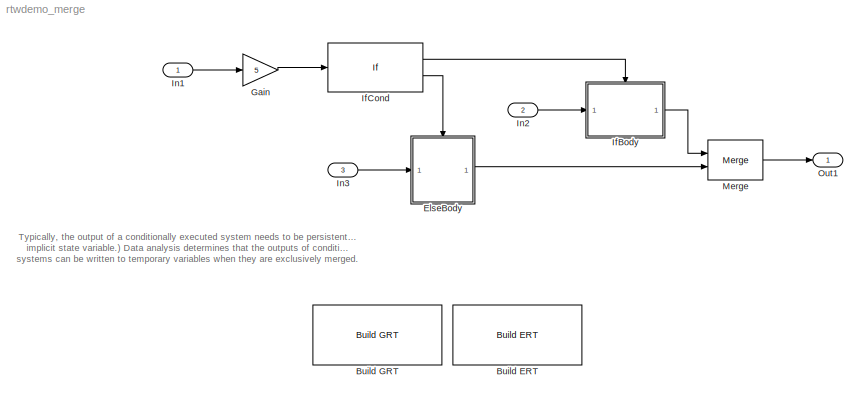
MODEL rtwdemo_merge
KIND model
BLOCK [Reference] Build ERT  REF=rtwdemowidgets/Build ERT
  Ports = []
  ShowPortLabels = on
  SourceBlock = rtwdemowidgets/Build ERT
  attrib_overrides = {}
BLOCK [Reference] Build GRT  REF=rtwdemowidgets/Build GRT
  Ports = []
  ShowPortLabels = on
  SourceBlock = rtwdemowidgets/Build GRT
  attrib_overrides = {}
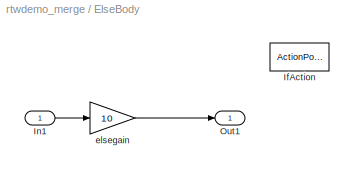
BLOCK [SubSystem] ElseBody
  MinAlgLoopOccurrences = off
  Ports = [1, 1, 0, 0, 0, 0, 0, 1]
  PropExecContextAcrossSSBoundary = on
  RTWSystemCode = Auto
  TreatAsAtomicUnit = on
BLOCK [ActionPort] ElseBody/IfAction
  ActionType = else
BLOCK [Inport] ElseBody/In1
  IconDisplay = Port number
  LatchInput = off
  Port = 1
BLOCK [Outport] ElseBody/Out1
  BusOutputAsStruct = off
  IconDisplay = Port number
BLOCK [Gain] ElseBody/elsegain
  Gain = 10
BLOCK [Gain] Gain
  Gain = 5
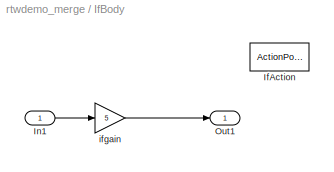
BLOCK [SubSystem] IfBody
  MinAlgLoopOccurrences = off
  Ports = [1, 1, 0, 0, 0, 0, 0, 1]
  PropExecContextAcrossSSBoundary = on
  RTWSystemCode = Auto
  TreatAsAtomicUnit = on
BLOCK [ActionPort] IfBody/IfAction
  ActionType = then
BLOCK [Inport] IfBody/In1
  IconDisplay = Port number
  LatchInput = off
  Port = 1
BLOCK [Outport] IfBody/Out1
  BusOutputAsStruct = off
  IconDisplay = Port number
BLOCK [Gain] IfBody/ifgain
  Gain = 5
BLOCK [If] IfCond
  Ports = [1, 2]
BLOCK [Inport] In1
  DataType = single
  IconDisplay = Port number
  LatchInput = off
  Port = 1
BLOCK [Inport] In2
  DataType = single
  IconDisplay = Port number
  LatchInput = off
  Port = 2
BLOCK [Inport] In3
  DataType = single
  IconDisplay = Port number
  LatchInput = off
  Port = 3
BLOCK [Merge] Merge
  Ports = [2, 1]
BLOCK [Outport] Out1
  BusOutputAsStruct = off
  IconDisplay = Port number
ANNOTATION (root): Typically, the output of a conditionally executed system needs to be persistent (since it's an\nimplicit state variable.) Data analysis determines that the outputs of conditionally executed\nsystems can be written to temporary variables when they are exclusively merged.
LINE ElseBody/In1:1 -> ElseBody/elsegain:1
LINE ElseBody/elsegain:1 -> ElseBody/Out1:1
LINE ElseBody:1 -> Merge:2
LINE Gain:1 -> IfCond:1
LINE IfBody/In1:1 -> IfBody/ifgain:1
LINE IfBody/ifgain:1 -> IfBody/Out1:1
LINE IfBody:1 -> Merge:1
LINE IfCond:1 -> IfBody:ifaction
LINE IfCond:2 -> ElseBody:ifaction
LINE In1:1 -> Gain:1
LINE In2:1 -> IfBody:1
LINE In3:1 -> ElseBody:1
LINE Merge:1 -> Out1:1
